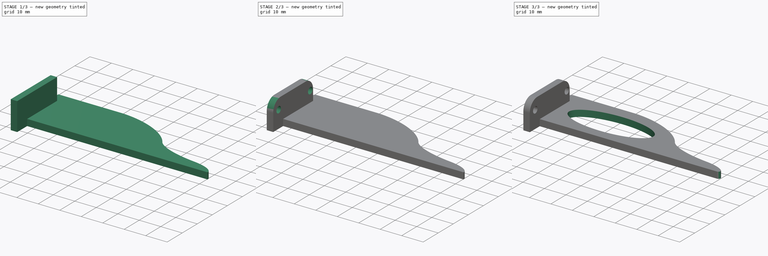
[diagram: build sequence overview — one tinted view per stage of 3, left to right]
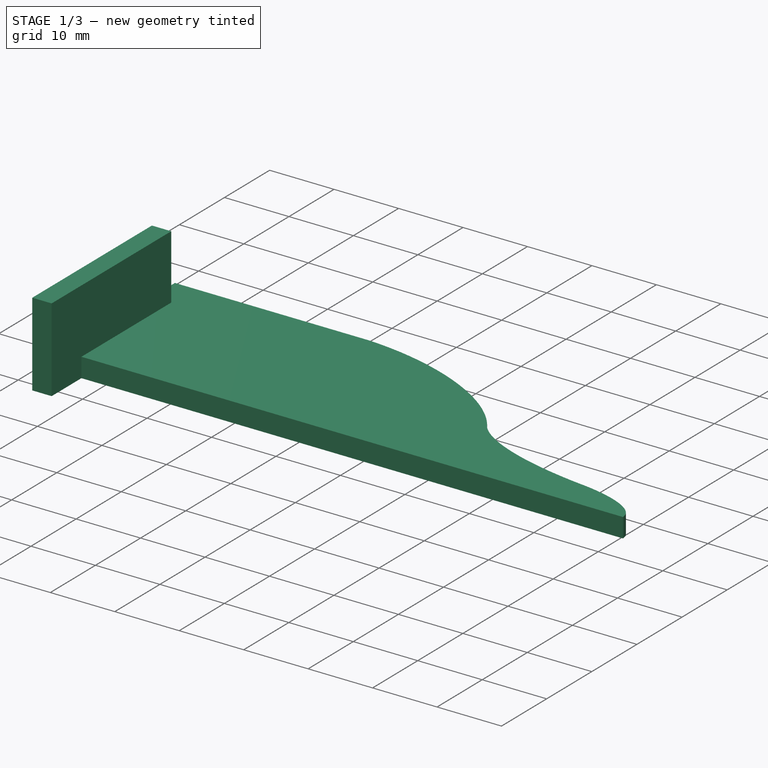
[diagram: stage 1 of 3 — iso view after this stage's code; geometry added in this stage tinted green]
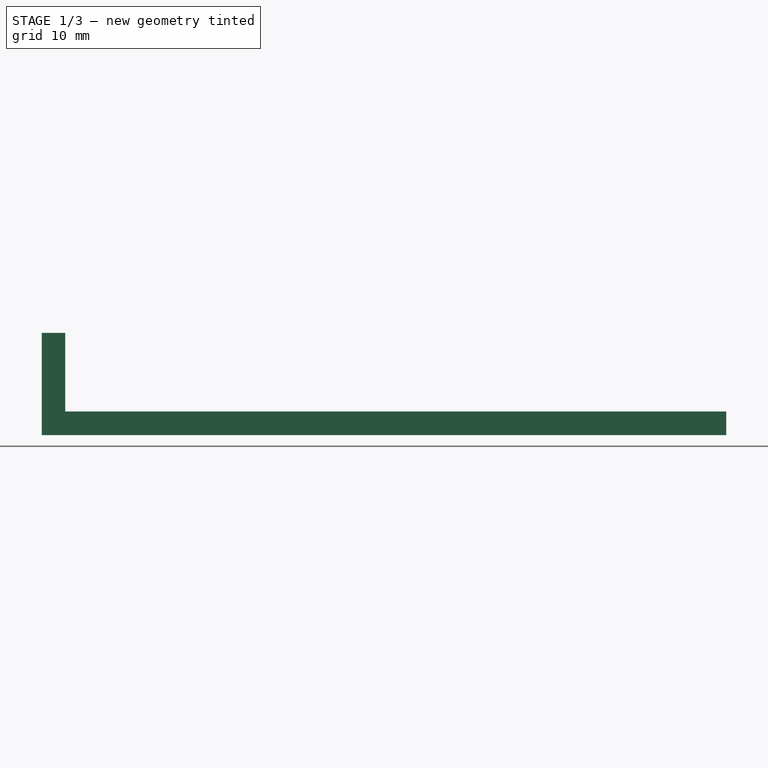
[diagram: stage 1 of 3 — front view after this stage's code; geometry added in this stage tinted green]
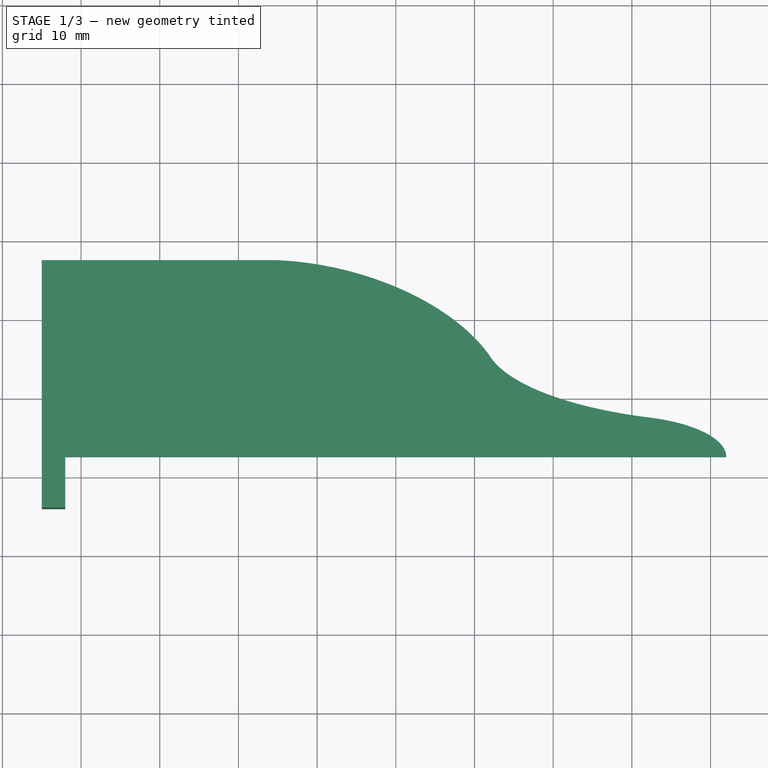
[diagram: stage 1 of 3 — top view after this stage's code; geometry added in this stage tinted green]
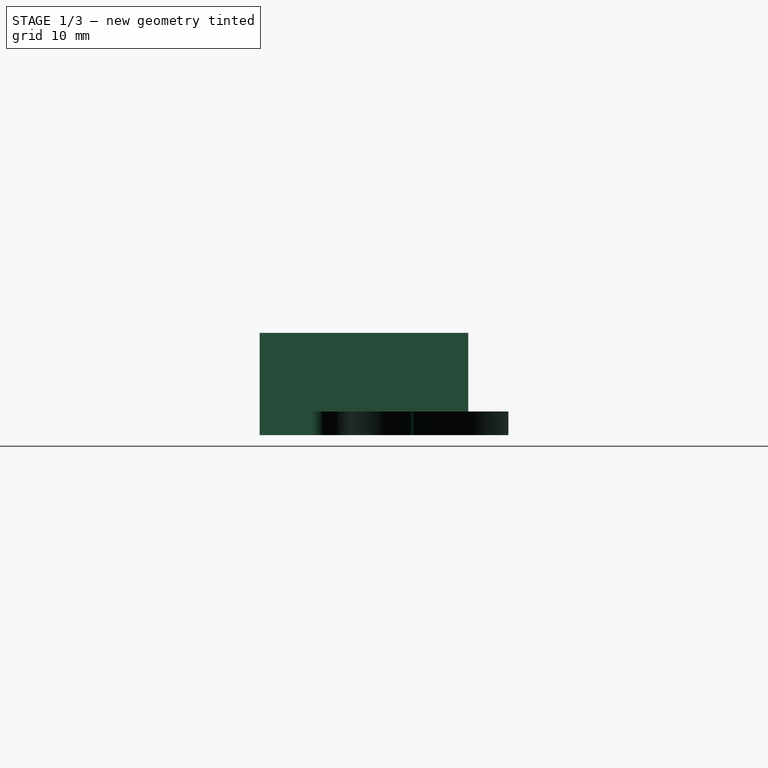
[diagram: stage 1 of 3 — right view after this stage's code; geometry added in this stage tinted green]
FCSTD DOCUMENT  (FreeCAD 0.19R24276 (Git))
Label: Lets_CW_rotation_part_V1
License: All rights reserved
LicenseURL: http://en.wikipedia.org/wiki/All_rights_reserved
objects: Sketcher::SketchObject×4, PartDesign::Fillet×3, PartDesign::Pad×2, PartDesign::Pocket×2, PartDesign::Body×1
note: 19 computed .brp shape members not serialized (recipe doc carries the construction recipe); baked Part::Feature solids carry a one-line shape summary decoded from their .brp

FEATURE [Sketcher::SketchObject] Sketch
  FullyConstrained = false
  MapMode = 5
  Support = -> [XY_Plane]
  sketch-geometry (28):
    g0: LineSegment StartX=82 StartY=12.6 StartZ=0 EndX=82 EndY=0 EndZ=0
    g1: LineSegment StartX=25 StartY=37.6 StartZ=0 EndX=0 EndY=37.6 EndZ=0
    g2: ArcOfEllipse CenterX=83.347 CenterY=27.5299 CenterZ=0 NormalX=0 NormalY=0 NormalZ=1 MajorRadius=32.0863 MinorRadius=10.6154 AngleXU=3.13902 StartAngle=0.193339 EndAngle=1.1929
    g3: ArcOfEllipse CenterX=29.4608 CenterY=22.9404 CenterZ=0 NormalX=0 NormalY=0 NormalZ=1 MajorRadius=25.119 MinorRadius=13.9875 AngleXU=-0.218564 StartAngle=0.559458 EndAngle=1.87539
    g4: LineSegment StartX=0 StartY=0 StartZ=0 EndX=82 EndY=0 EndZ=0
    g5: LineSegment StartX=0 StartY=0 StartZ=0 EndX=0 EndY=37.6 EndZ=0
    g6: LineSegment StartX=82 StartY=12.6 StartZ=0 EndX=0 EndY=12.6 EndZ=0
    g7: ArcOfEllipse CenterX=67.4528 CenterY=12.6 CenterZ=0 NormalX=0 NormalY=0 NormalZ=1 MajorRadius=14.5472 MinorRadius=5.30145 AngleXU=0 StartAngle=1e-16 EndAngle=1.29008
    g8: LineSegment StartX=82 StartY=12.6 StartZ=0 EndX=52.9057 EndY=12.6 EndZ=0
    g9: GeomPoint X=80.9996 Y=12.6 Z=0
    g10: GeomPoint X=53.9061 Y=12.6 Z=0
    g11: LineSegment StartX=67.4528 StartY=12.6 StartZ=0 EndX=72.8651 EndY=17.5209 EndZ=0
    g12: LineSegment StartX=72.8651 StartY=17.5209 StartZ=0 EndX=73.0456 EndY=30.9911 EndZ=0
    g13: LineSegment StartX=19 StartY=12.5755 StartZ=0 EndX=0 EndY=12.5755 EndZ=0
    g14: LineSegment StartX=0 StartY=12.5755 StartZ=0 EndX=0 EndY=0 EndZ=0
    g15: LineSegment StartX=0 StartY=0 StartZ=0 EndX=19 EndY=0 EndZ=0
    g16: LineSegment StartX=25 StartY=37.6 StartZ=0 EndX=25 EndY=12.6 EndZ=0
    g17: LineSegment StartX=25 StartY=37.6 StartZ=0 EndX=25 EndY=12.6 EndZ=0
    g18: LineSegment StartX=25 StartY=12.6 StartZ=0 EndX=82 EndY=12.6 EndZ=0
    g19: LineSegment StartX=25 StartY=12.6 StartZ=0 EndX=0 EndY=12.6 EndZ=0
    g20: LineSegment StartX=0 StartY=12.6 StartZ=0 EndX=0 EndY=0 EndZ=0
    g21: LineSegment StartX=0 StartY=0 StartZ=0 EndX=25 EndY=0 EndZ=0
    g22: LineSegment StartX=25 StartY=0 StartZ=0 EndX=25 EndY=12.6 EndZ=0
    g23: LineSegment StartX=25 StartY=37.6 StartZ=0 EndX=-5 EndY=37.6 EndZ=0
    g24: LineSegment StartX=-5 StartY=37.6 StartZ=0 EndX=-5 EndY=12.6 EndZ=0
    g25: LineSegment StartX=-5 StartY=12.6 StartZ=0 EndX=25 EndY=12.6 EndZ=0
    g26: LineSegment StartX=25 StartY=12.6 StartZ=0 EndX=25 EndY=37.6 EndZ=0
    g27: LineSegment StartX=-5 StartY=12.6 StartZ=0 EndX=82 EndY=12.6 EndZ=0
  constraints (64):
    c: PointOnObject(g0,g-1)
    c: Vertical(g0)
    c: Horizontal(g1)
    c: Coincident(g3,g2)
    c: Coincident(g4,g-1)
    c: Coincident(g4,g0)
    c: Coincident(g5,g-1)
    c: Vertical(g5)
    c: Coincident(g1,g5)
    c: PointOnObject(g6,g5)
    c: Horizontal(g6)
    c: DistanceY(g6,g1) = 25
    c: Coincident(g1,g3)
    c: InternalAlignment(g8,g7)
    c: InternalAlignment(g9,g7)
    c: InternalAlignment(g10,g7)
    c: Coincident(g11,g7)
    c: PointOnObject(g11,g7)
    c: PointOnObject(g12,g2)
    c: Coincident(g11,g12)
    c: Coincident(g8,g6)
    c: Horizontal(g8)
    c: Coincident(g0,g6)
    c: Coincident(g7,g2)
    c: Horizontal(g7,g6)
    c: Coincident(g13,g14)
    c: Coincident(g14,g15)
    c: Horizontal(g13)
    c: Horizontal(g15)
    c: Vertical(g14)
    c: Coincident(g14,g-1)
    c: Coincident(g16,g3)
    c: Vertical(g16)
    c: PointOnObject(g16,g6)
    c: DistanceX(g16,g7) = 57
    c: Coincident(g17,g3)
    c: Coincident(g18,g16)
    c: Coincident(g18,g7)
    c: Coincident(g17,g18)
    c: Coincident(g19,g20)
    c: Coincident(g20,g21)
    c: Coincident(g21,g22)
    c: Coincident(g22,g19)
    c: Horizontal(g19)
    c: Horizontal(g21)
    c: Vertical(g20)
    c: Vertical(g22)
    c: Coincident(g19,g17)
    c: Coincident(g20,g-1)
    c: DistanceX(g-1,g21) = 25
    c: DistanceY(g-1,g6) = 12.6
    c: Coincident(g23,g24)
    c: Coincident(g24,g25)
    c: Coincident(g25,g26)
    c: Coincident(g26,g23)
    c: Horizontal(g23)
    c: Horizontal(g25)
    c: Vertical(g24)
    c: Vertical(g26)
    c: Coincident(g23,g3)
    c: Horizontal(g24,g17)
    c: DistanceX(g23,g23) = 30
    c: Coincident(g27,g24)
    c: Coincident(g27,g7)
FEATURE [PartDesign::Pad] Pad
  Direction = (1,1,1)
  Length = 3
  Length2 = 100
  Profile = -> Sketch
  Type = 0
FEATURE [Sketcher::SketchObject] Sketch001
  FullyConstrained = false
  MapMode = 5
  Placement = pos=(-5,0,0) rot=(0.57735,-0.57735,-0.57735;2.0944rad)
  Support = -> [Pad]
  sketch-geometry (16):
    g0: LineSegment StartX=-32.5 StartY=3 StartZ=0 EndX=-6 EndY=3 EndZ=0
    g1: LineSegment StartX=-6 StartY=3 StartZ=0 EndX=-6 EndY=13 EndZ=0
    g2: LineSegment StartX=-6 StartY=13 StartZ=0 EndX=-32.5 EndY=13 EndZ=0
    g3: LineSegment StartX=-32.5 StartY=13 StartZ=0 EndX=-32.5 EndY=3 EndZ=0
    g4: LineSegment StartX=-37.6106 StartY=4.1279 StartZ=0 EndX=-32.5 EndY=4.1279 EndZ=0
    g5: LineSegment StartX=-32.5 StartY=4.1279 StartZ=0 EndX=-32.5 EndY=13 EndZ=0
    g6: LineSegment StartX=-32.5 StartY=13 StartZ=0 EndX=-37.6106 EndY=13 EndZ=0
    g7: LineSegment StartX=-37.6106 StartY=13 StartZ=0 EndX=-37.6106 EndY=4.1279 EndZ=0
    g8: LineSegment StartX=-6 StartY=3 StartZ=0 EndX=-12.6 EndY=3 EndZ=0
    g9: LineSegment StartX=-12.6 StartY=3 StartZ=0 EndX=-12.6 EndY=0 EndZ=0
    g10: LineSegment StartX=-12.6 StartY=0 StartZ=0 EndX=-6 EndY=0 EndZ=0
    g11: LineSegment StartX=-6 StartY=0 StartZ=0 EndX=-6 EndY=3 EndZ=0
    g12: LineSegment StartX=-6 StartY=0 StartZ=0 EndX=-12.6 EndY=0 EndZ=0
    g13: LineSegment StartX=-12.6 StartY=0 StartZ=0 EndX=-12.6 EndY=3 EndZ=0
    g14: LineSegment StartX=-12.6 StartY=3 StartZ=0 EndX=-32.5 EndY=3 EndZ=0
    g15: LineSegment StartX=-6 StartY=13 StartZ=0 EndX=-6 EndY=0 EndZ=0
  constraints (40):
    c: Coincident(g0,g1)
    c: Coincident(g1,g2)
    c: Coincident(g2,g3)
    c: Coincident(g3,g0)
    c: Horizontal(g0)
    c: Horizontal(g2)
    c: Vertical(g1)
    c: Vertical(g3)
    c: DistanceX(g0,g-1) = 6
    c: DistanceX(g0,g0) = 26.5
    c: DistanceY(g1,g1) = 10
    c: DistanceY(g-1,g0) = 3
    c: Coincident(g4,g5)
    c: Coincident(g5,g6)
    c: Coincident(g6,g7)
    c: Coincident(g7,g4)
    c: Horizontal(g4)
    c: Horizontal(g6)
    c: Vertical(g5)
    c: Vertical(g7)
    c: Coincident(g5,g2)
    c: Coincident(g8,g9)
    c: Coincident(g9,g10)
    c: Coincident(g10,g11)
    c: Coincident(g11,g8)
    c: Horizontal(g8)
    c: Horizontal(g10)
    c: Vertical(g9)
    c: Vertical(g11)
    c: Coincident(g8,g0)
    c: PointOnObject(g9,g-1)
    c: DistanceX(g9,g-1) = 12.6
    c: Coincident(g12,g10)
    c: Coincident(g13,g9)
    c: Coincident(g14,g8)
    c: Coincident(g14,g3)
    c: Coincident(g13,g14)
    c: Coincident(g12,g13)
    c: Coincident(g15,g2)
    c: Coincident(g15,g12)
FEATURE [PartDesign::Pad] Pad001
  BaseFeature = -> Pad
  Direction = (1,1,1)
  Length = 3
  Length2 = 100
  Profile = -> Sketch001
  Reversed = true
  Type = 0
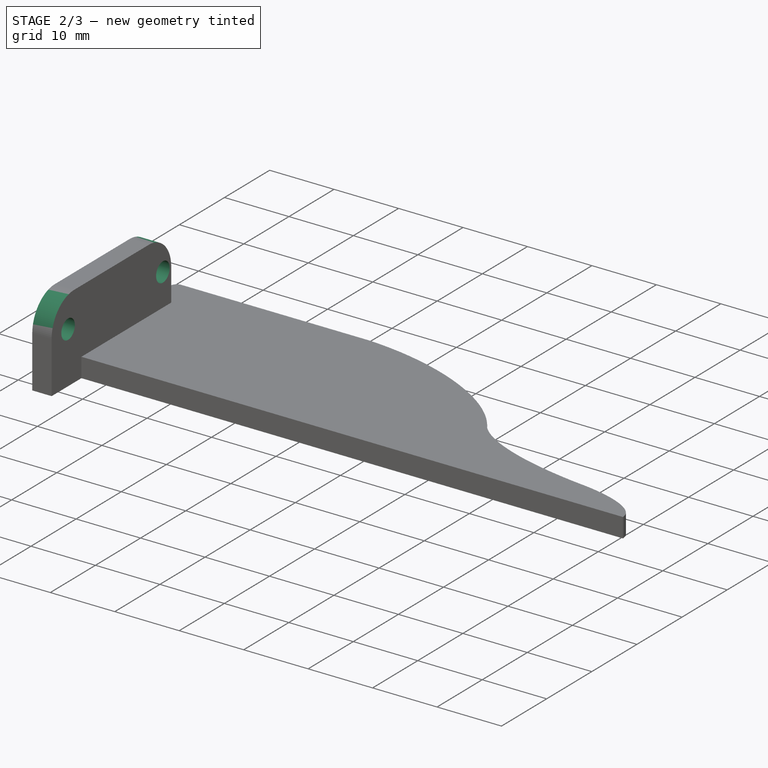
[diagram: stage 2 of 3 — iso view after this stage's code; geometry added in this stage tinted green]
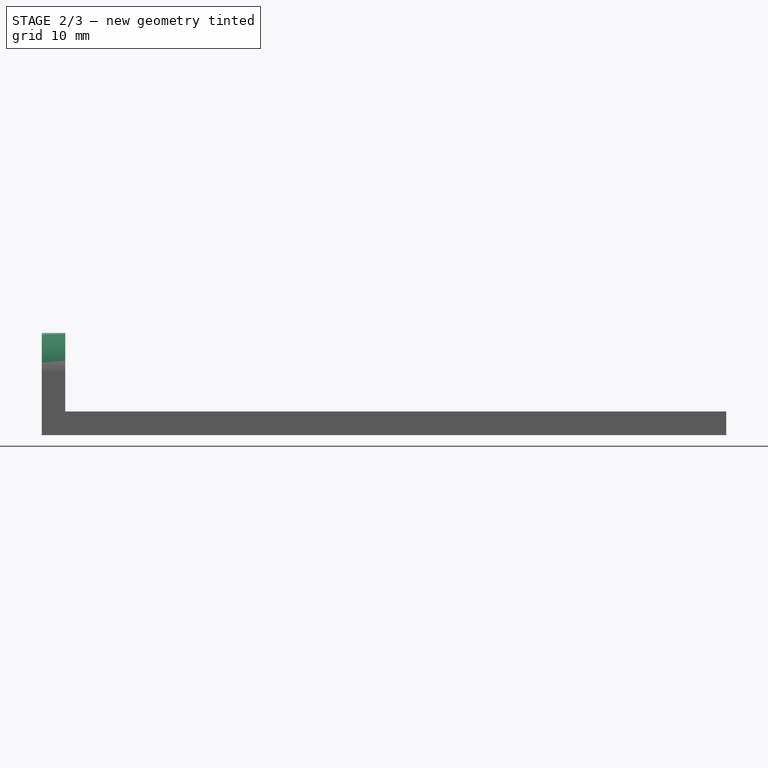
[diagram: stage 2 of 3 — front view after this stage's code; geometry added in this stage tinted green]
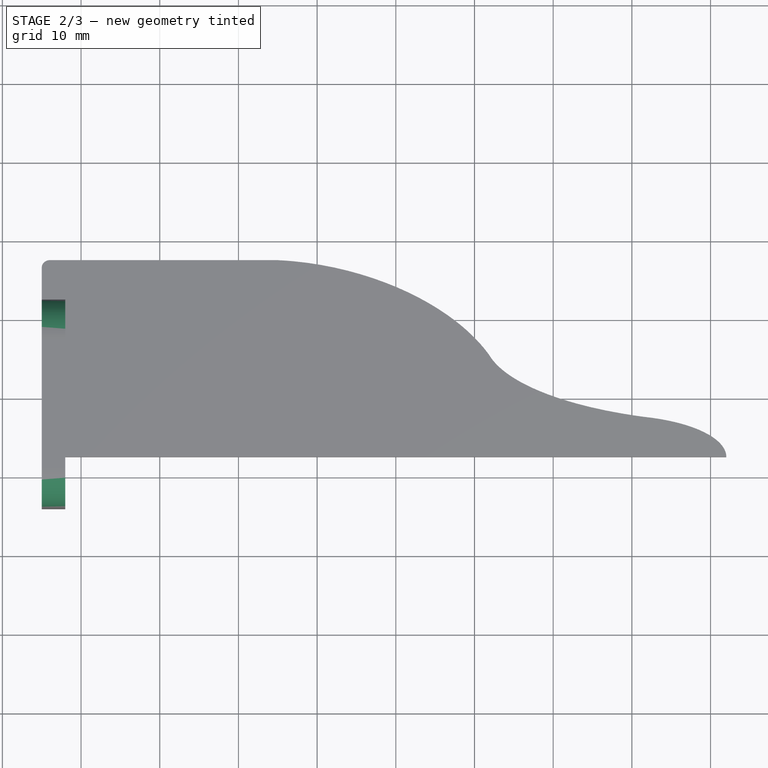
[diagram: stage 2 of 3 — top view after this stage's code; geometry added in this stage tinted green]
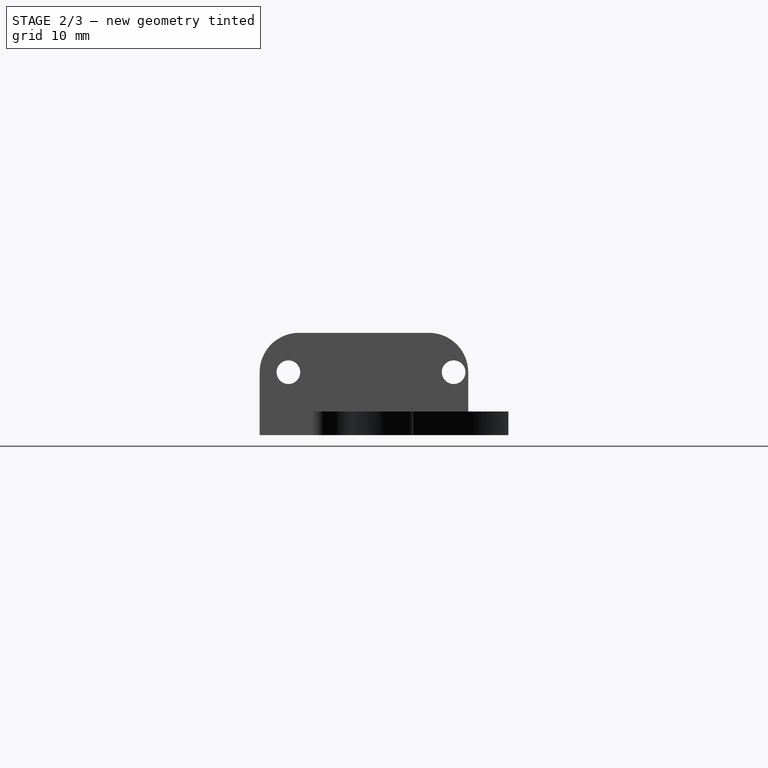
[diagram: stage 2 of 3 — right view after this stage's code; geometry added in this stage tinted green]
FEATURE [Sketcher::SketchObject] Sketch002
  FullyConstrained = false
  MapMode = 5
  Placement = pos=(-5,0,0) rot=(0.57735,-0.57735,-0.57735;2.0944rad)
  Support = -> [Pad001]
  sketch-geometry (10):
    g0: Circle CenterX=-30.65 CenterY=8 CenterZ=0 NormalX=0 NormalY=0 NormalZ=1 AngleXU=0 Radius=1.5
    g1: Circle CenterX=-9.65 CenterY=8 CenterZ=0 NormalX=0 NormalY=0 NormalZ=1 AngleXU=0 Radius=1.5
    g2: LineSegment StartX=-37.65 StartY=3.00021 StartZ=0 EndX=-30.65 EndY=3.00021 EndZ=0
    g3: LineSegment StartX=-30.65 StartY=3.00021 StartZ=0 EndX=-30.65 EndY=14.7982 EndZ=0
    g4: LineSegment StartX=-30.65 StartY=14.7982 StartZ=0 EndX=-37.65 EndY=14.7982 EndZ=0
    g5: LineSegment StartX=-37.65 StartY=14.7982 StartZ=0 EndX=-37.65 EndY=3.00021 EndZ=0
    g6: LineSegment StartX=0 StartY=0 StartZ=0 EndX=-37.65 EndY=0 EndZ=0
    g7: LineSegment StartX=-37.65 StartY=0 StartZ=0 EndX=-37.65 EndY=3.00021 EndZ=0
    g8: LineSegment StartX=-37.65 StartY=3.00021 StartZ=0 EndX=0 EndY=3.00021 EndZ=0
    g9: LineSegment StartX=0 StartY=3.00021 StartZ=0 EndX=0 EndY=0 EndZ=0
  constraints (26):
    c: Horizontal(g0,g1)
    c: Diameter(g0) = 3
    c: Equal(g0,g1)
    c: DistanceX(g0,g1) = 21
    c: Coincident(g2,g3)
    c: Coincident(g3,g4)
    c: Coincident(g4,g5)
    c: Coincident(g5,g2)
    c: Horizontal(g2)
    c: Horizontal(g4)
    c: Vertical(g3)
    c: Vertical(g5)
    c: DistanceX(g4,g4) = 7
    c: Coincident(g6,g7)
    c: Coincident(g7,g8)
    c: Coincident(g8,g9)
    c: Coincident(g9,g6)
    c: Horizontal(g6)
    c: Horizontal(g8)
    c: Vertical(g7)
    c: Vertical(g9)
    c: Coincident(g6,g-1)
    c: Coincident(g7,g2)
    c: DistanceX(g6,g6) = 37.65
    c: Vertical(g3,g0)
    c: DistanceY(g-1,g1) = 8
FEATURE [PartDesign::Pocket] Pocket
  BaseFeature = -> Pad001
  Length = 5
  Length2 = 100
  Profile = -> Sketch002
  Type = 1
FEATURE [PartDesign::Fillet] Fillet
  Base = -> Pocket [Edge34,Edge27]
  BaseFeature = -> Pocket
  Radius = 5
  SupportTransform = false
FEATURE [PartDesign::Fillet] Fillet001
  Base = -> Fillet [Edge34]
  BaseFeature = -> Fillet
  Radius = 1
  SupportTransform = false
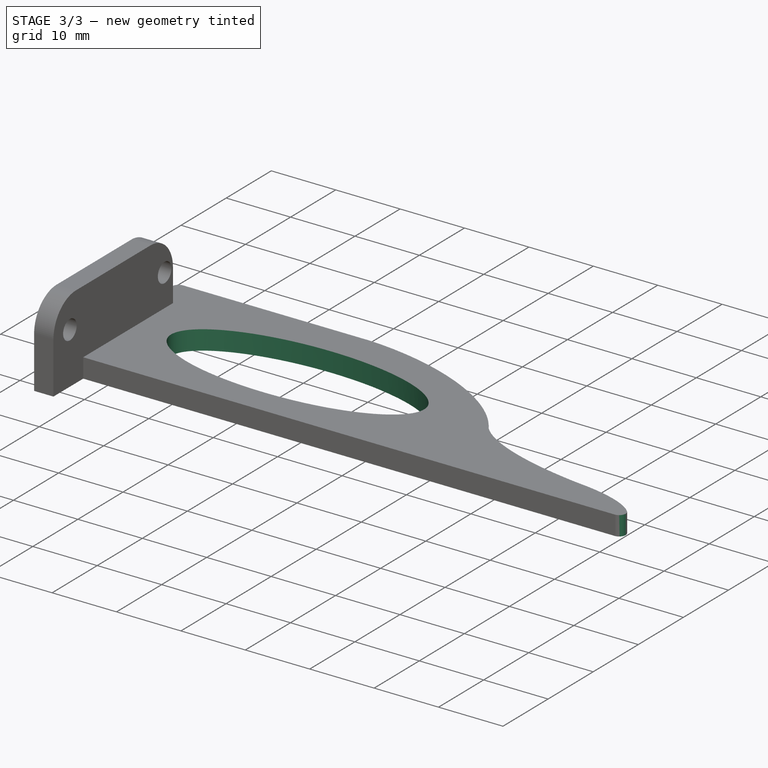
[diagram: stage 3 of 3 — iso view after this stage's code; geometry added in this stage tinted green]
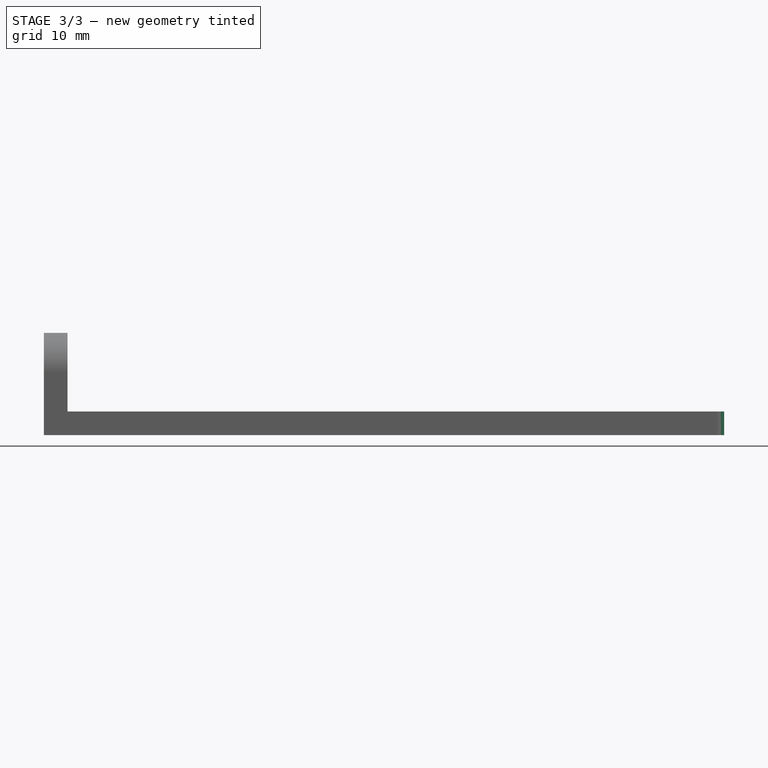
[diagram: stage 3 of 3 — front view after this stage's code; geometry added in this stage tinted green]
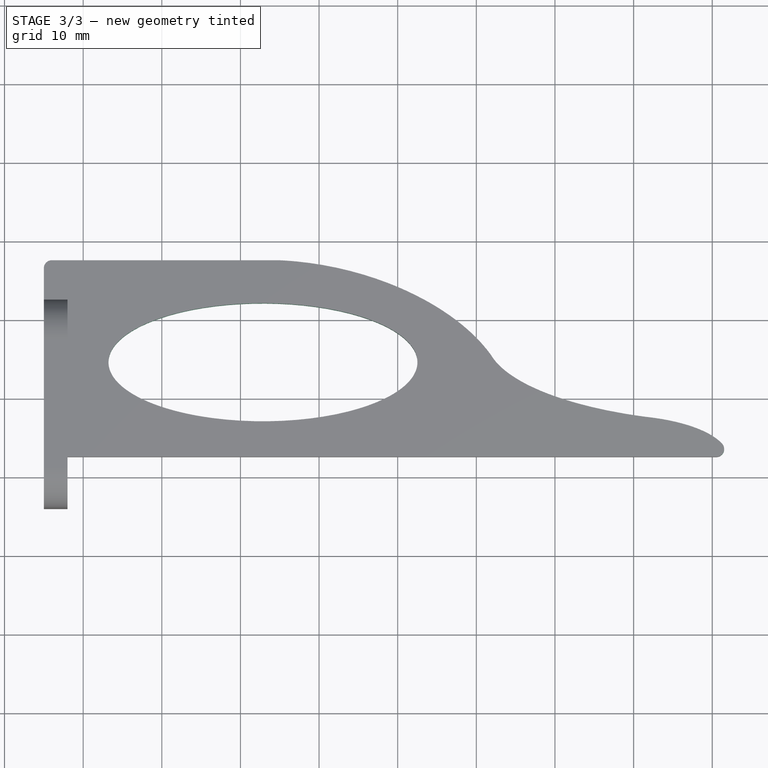
[diagram: stage 3 of 3 — top view after this stage's code; geometry added in this stage tinted green]
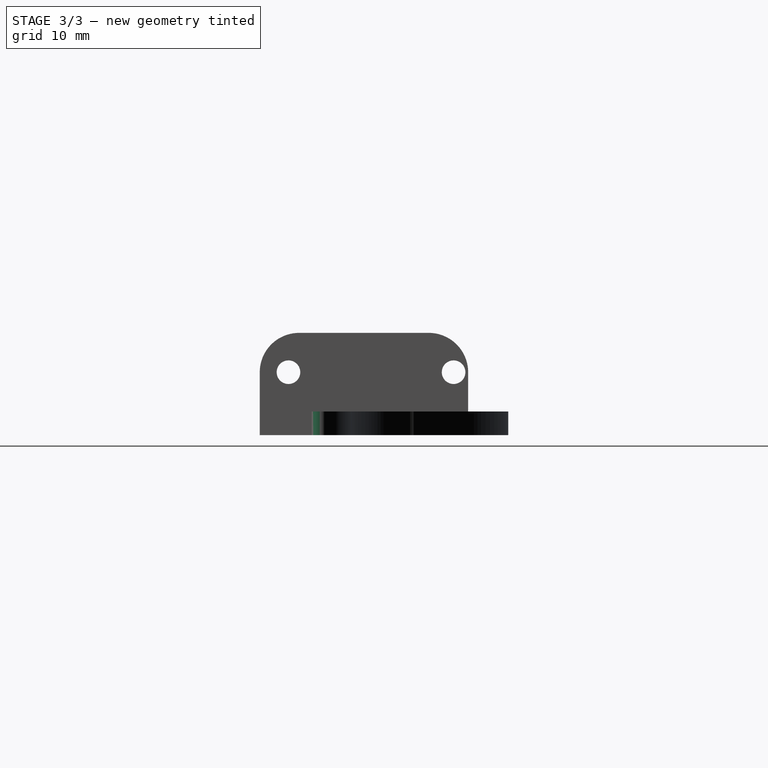
[diagram: stage 3 of 3 — right view after this stage's code; geometry added in this stage tinted green]
FEATURE [PartDesign::Fillet] Fillet002
  Base = -> Fillet001 [Edge25]
  BaseFeature = -> Fillet001
  Radius = 1
  SupportTransform = false
FEATURE [Sketcher::SketchObject] Sketch003
  FullyConstrained = false
  MapMode = 5
  Placement = pos=(0,0,3) rot=(0,0,1;0rad)
  Support = -> [Fillet002]
  sketch-geometry (5):
    g0: Ellipse CenterX=22.864 CenterY=24.6263 CenterZ=0 NormalX=0 NormalY=0 NormalZ=1 MajorRadius=19.645 MinorRadius=7.50766 AngleXU=0
    g1: LineSegment StartX=42.509 StartY=24.6263 StartZ=0 EndX=3.21909 EndY=24.6263 EndZ=0
    g2: LineSegment StartX=22.864 StartY=32.134 StartZ=0 EndX=22.864 EndY=17.1187 EndZ=0
    g3: GeomPoint X=41.0178 Y=24.6263 Z=0
    g4: GeomPoint X=4.71028 Y=24.6263 Z=0
  constraints (2):
    c: InternalAlignment(g1-g4 -> g0) x4
    c: Horizontal(g1)
FEATURE [PartDesign::Pocket] Pocket001
  BaseFeature = -> Fillet002
  Length = 5
  Length2 = 100
  Profile = -> Sketch003
  Type = 1
FEATURE [PartDesign::Body] Body
  Group = -> [Sketch,Pad,Sketch001,Pad001,Sketch002,Pocket,Fillet,Fillet001,Fillet002,Sketch003,Pocket001]
  Origin = -> Origin
  Tip = -> Pocket001
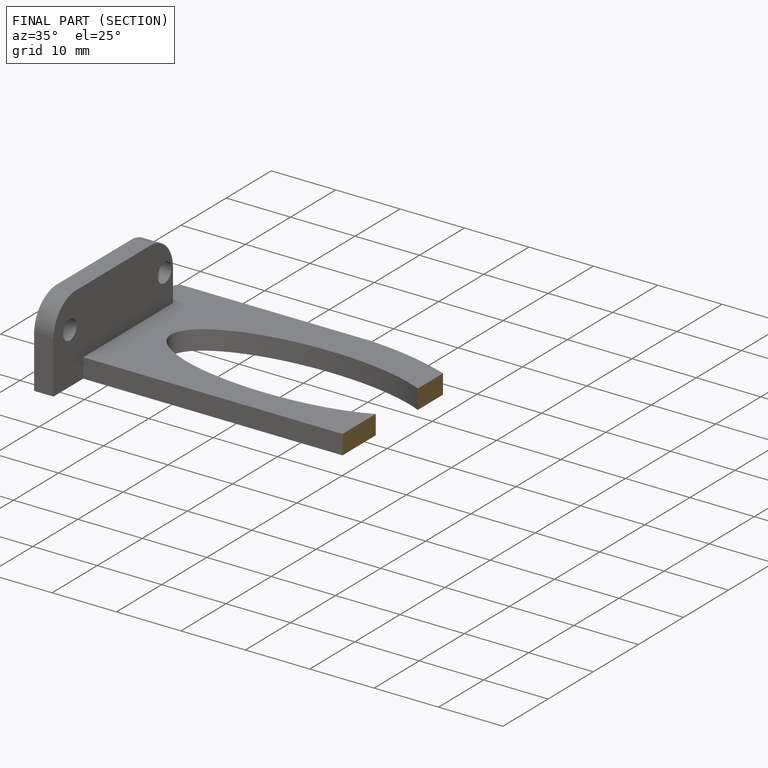
[diagram: finished part — half-section view (interior)]
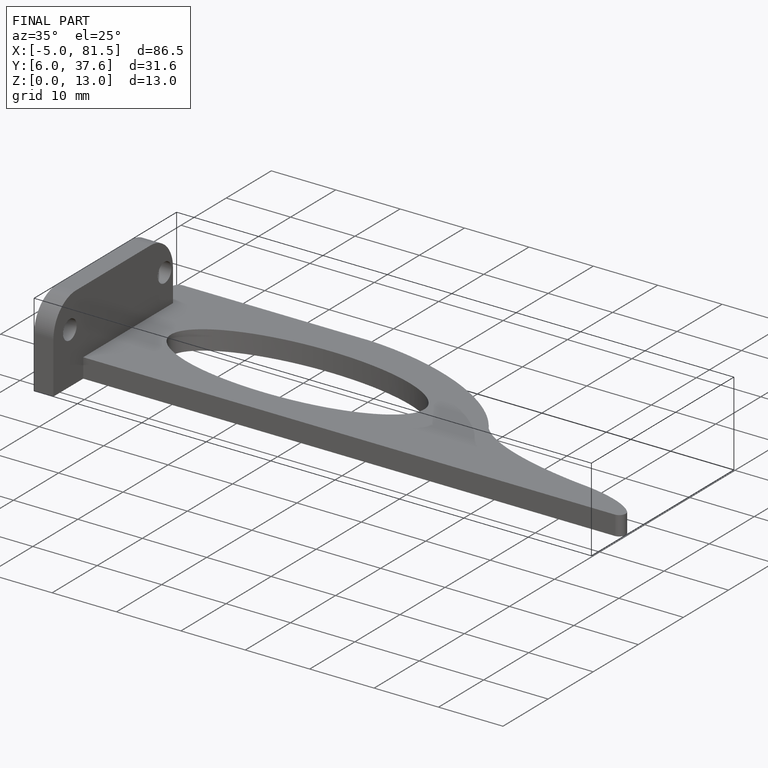
[diagram: finished part — iso view with bounding-box wireframe]
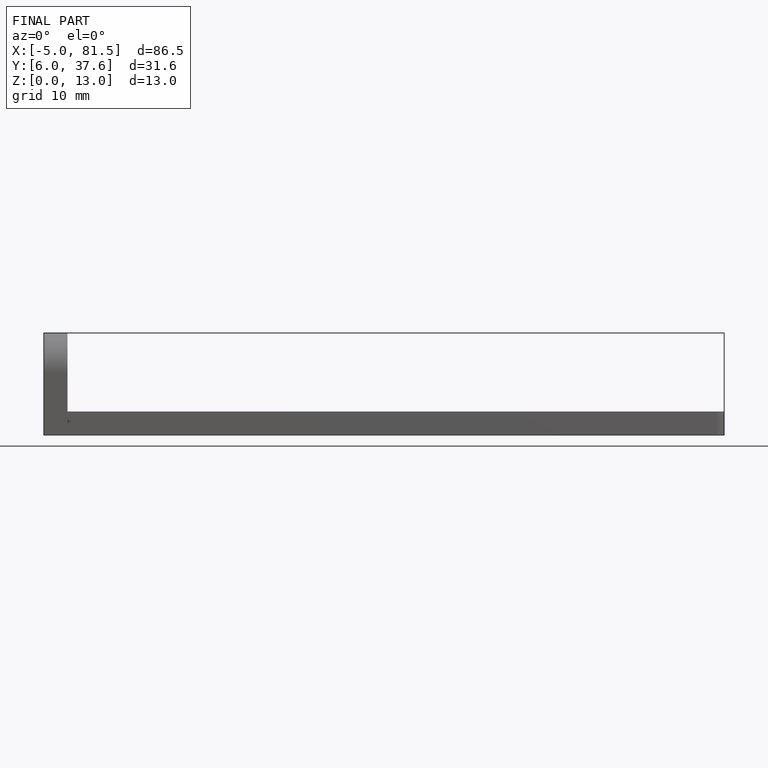
[diagram: finished part — front view with bounding-box wireframe]
